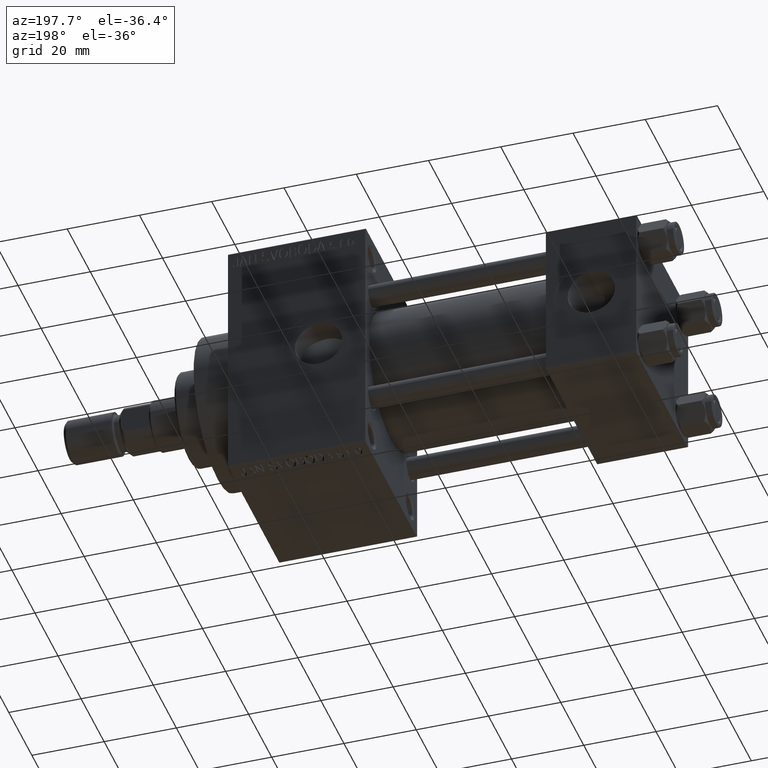
[diagram: clean part render]
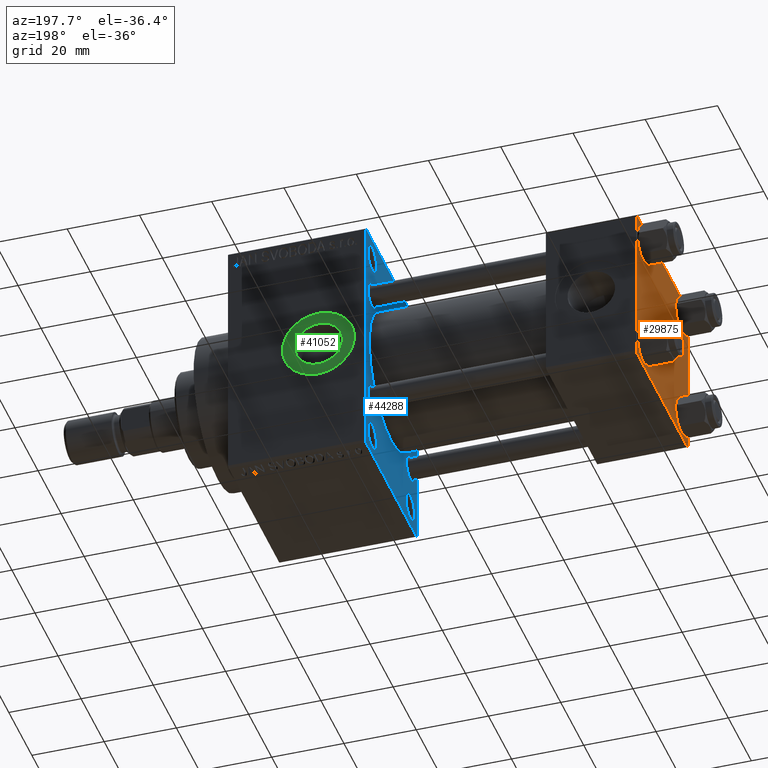
[diagram: same view with three faces highlighted in distinct colors, each labeled with its STEP entity id]
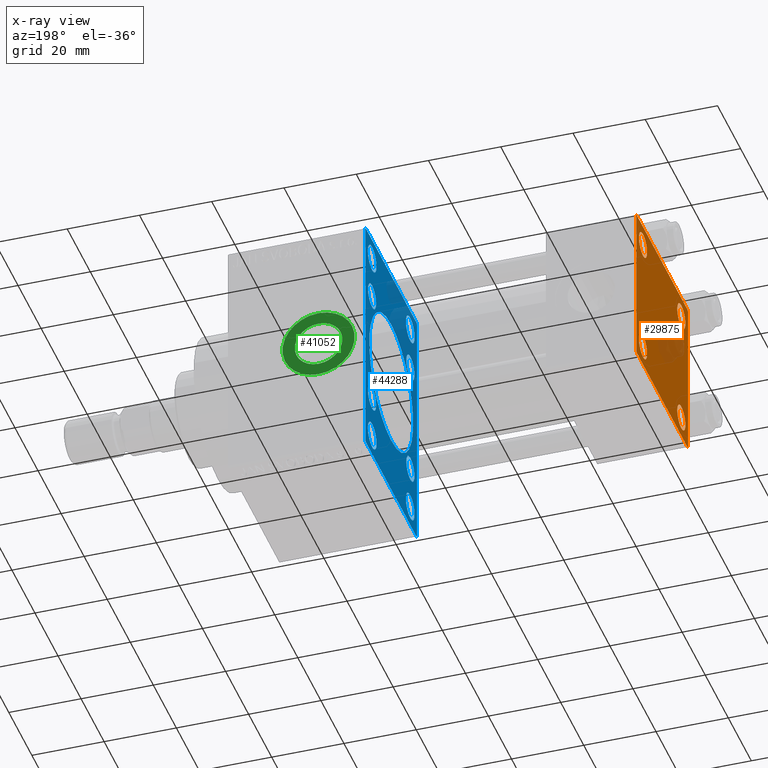
[diagram: x-ray of the same camera — body ghosted, the three highlighted faces saturated]
A machine part, auxiliary view with three faces highlighted in distinct colors.
The next image is the same camera in x-ray (body ghosted, the three faces saturated) — at least one of them is partly hidden behind the body in this view.
Their STEP definitions:

[orange] entity #29875 — the highlighted planar face has unit normal (-1, 0, 0).
#225 = EDGE_CURVE ( 'NONE', #825, #4265, #37685, .T. ) ;
#332 = CARTESIAN_POINT ( 'NONE',  ( 0.000000000000000000, 16.59999999999999787, 20.10000000000000142 ) ) ;
#382 = CARTESIAN_POINT ( 'NONE',  ( 0.000000000000000000, -16.59999999999999076, -20.10000000000000497 ) ) ;
#463 = LINE ( 'NONE', #8149, #9715 ) ;
#741 = AXIS2_PLACEMENT_3D ( 'NONE', #32288, #46961, #2674 ) ;
#805 = AXIS2_PLACEMENT_3D ( 'NONE', #1947, #45299, #16646 ) ;
#825 = VERTEX_POINT ( 'NONE', #4850 ) ;
#1101 = CARTESIAN_POINT ( 'NONE',  ( 0.000000000000000000, -22.50000000000000000, -21.99999999999997158 ) ) ;
#1104 = LINE ( 'NONE', #15803, #41071 ) ;
#1400 = VERTEX_POINT ( 'NONE', #35966 ) ;
#1917 = CIRCLE ( 'NONE', #32682, 3.499999999999996003 ) ;
#1947 = CARTESIAN_POINT ( 'NONE',  ( 0.000000000000000000, -16.59999999999999076, -16.60000000000000853 ) ) ;
#2069 = ORIENTED_EDGE ( 'NONE', *, *, #46280, .T. ) ;
#2674 = DIRECTION ( 'NONE',  ( 0.000000000000000000, 0.000000000000000000, 1.000000000000000000 ) ) ;
#2797 = EDGE_CURVE ( 'NONE', #25681, #11551, #22301, .T. ) ;
#2951 = CARTESIAN_POINT ( 'NONE',  ( 0.000000000000000000, 21.99999999999999289, 22.50000000000000355 ) ) ;
#3307 = VERTEX_POINT ( 'NONE', #12575 ) ;
#3429 = ORIENTED_EDGE ( 'NONE', *, *, #7224, .T. ) ;
#3834 = DIRECTION ( 'NONE',  ( 1.000000000000000000, -0.000000000000000000, 0.000000000000000000 ) ) ;
#4047 = LINE ( 'NONE', #4284, #27023 ) ;
#4104 = FACE_BOUND ( 'NONE', #44765, .T. ) ;
#4265 = VERTEX_POINT ( 'NONE', #1101 ) ;
#4284 = CARTESIAN_POINT ( 'NONE',  ( 0.000000000000000000, -22.25000000000014566, -22.24999999999984013 ) ) ;
#4610 = ORIENTED_EDGE ( 'NONE', *, *, #225, .F. ) ;
#4668 = CIRCLE ( 'NONE', #22355, 3.499999999999996003 ) ;
#4672 = DIRECTION ( 'NONE',  ( 0.000000000000000000, 0.000000000000000000, -1.000000000000000000 ) ) ;
#4850 = CARTESIAN_POINT ( 'NONE',  ( 0.000000000000000000, -22.50000000000000000, 22.00000000000000000 ) ) ;
#4893 = EDGE_CURVE ( 'NONE', #22153, #15526, #21363, .T. ) ;
#5141 = CARTESIAN_POINT ( 'NONE',  ( 0.000000000000000000, -22.50000000000000000, 22.50000000000000000 ) ) ;
#5320 = EDGE_LOOP ( 'NONE', ( #39931, #18912 ) ) ;
#5796 = ORIENTED_EDGE ( 'NONE', *, *, #28236, .T. ) ;
#6306 = CIRCLE ( 'NONE', #14777, 3.499999999999996003 ) ;
#6457 = DIRECTION ( 'NONE',  ( 1.000000000000000000, -0.000000000000000000, 0.000000000000000000 ) ) ;
#6470 = CARTESIAN_POINT ( 'NONE',  ( 0.000000000000000000, 16.59999999999999787, -13.10000000000000675 ) ) ;
#6612 = DIRECTION ( 'NONE',  ( 1.000000000000000000, -0.000000000000000000, 0.000000000000000000 ) ) ;
#6918 = AXIS2_PLACEMENT_3D ( 'NONE', #24778, #6457, #9619 ) ;
#6998 = DIRECTION ( 'NONE',  ( -0.000000000000000000, 0.000000000000000000, 1.000000000000000000 ) ) ;
#7215 = EDGE_CURVE ( 'NONE', #25416, #3307, #12204, .T. ) ;
#7224 = EDGE_CURVE ( 'NONE', #27956, #43630, #1917, .T. ) ;
#7230 = DIRECTION ( 'NONE',  ( -1.000000000000000000, 0.000000000000000000, -0.000000000000000000 ) ) ;
#8149 = CARTESIAN_POINT ( 'NONE',  ( 0.000000000000000000, 22.50000000000000000, -22.49999999999999645 ) ) ;
#8593 = DIRECTION ( 'NONE',  ( 0.000000000000000000, 0.7071067811865474617, -0.7071067811865474617 ) ) ;
#9619 = DIRECTION ( 'NONE',  ( 0.000000000000000000, 0.000000000000000000, 1.000000000000000000 ) ) ;
#9715 = VECTOR ( 'NONE', #37549, 1000.000000000000000 ) ;
#9738 = CARTESIAN_POINT ( 'NONE',  ( 0.000000000000000000, -16.59999999999999076, 13.10000000000001030 ) ) ;
#9858 = ORIENTED_EDGE ( 'NONE', *, *, #2797, .T. ) ;
#11551 = VERTEX_POINT ( 'NONE', #9738 ) ;
#12171 = DIRECTION ( 'NONE',  ( 0.000000000000000000, 0.000000000000000000, -1.000000000000000000 ) ) ;
#12204 = LINE ( 'NONE', #26186, #16546 ) ;
#12575 = CARTESIAN_POINT ( 'NONE',  ( 0.000000000000000000, 22.50000000000000000, 21.99999999999999645 ) ) ;
#13548 = VERTEX_POINT ( 'NONE', #42060 ) ;
#14187 = ORIENTED_EDGE ( 'NONE', *, *, #46662, .T. ) ;
#14425 = ORIENTED_EDGE ( 'NONE', *, *, #36286, .T. ) ;
#14426 = EDGE_CURVE ( 'NONE', #15526, #40166, #463, .T. ) ;
#14714 = FACE_OUTER_BOUND ( 'NONE', #18607, .T. ) ;
#14777 = AXIS2_PLACEMENT_3D ( 'NONE', #22147, #3834, #32503 ) ;
#14989 = ORIENTED_EDGE ( 'NONE', *, *, #7215, .T. ) ;
#15526 = VERTEX_POINT ( 'NONE', #25046 ) ;
#15803 = CARTESIAN_POINT ( 'NONE',  ( 0.000000000000000000, 22.50000000000000000, 22.50000000000000355 ) ) ;
#16528 = LINE ( 'NONE', #35065, #38664 ) ;
#16546 = VECTOR ( 'NONE', #8593, 1000.000000000000114 ) ;
#16646 = DIRECTION ( 'NONE',  ( 0.000000000000000000, 0.000000000000000000, 1.000000000000000000 ) ) ;
#17294 = CIRCLE ( 'NONE', #44194, 3.499999999999996003 ) ;
#17659 = CARTESIAN_POINT ( 'NONE',  ( 0.000000000000000000, 16.59999999999999787, 16.60000000000000497 ) ) ;
#17855 = PLANE ( 'NONE',  #26273 ) ;
#18028 = LINE ( 'NONE', #32723, #32544 ) ;
#18319 = CARTESIAN_POINT ( 'NONE',  ( 0.000000000000000000, 0.000000000000000000, 0.000000000000000000 ) ) ;
#18607 = EDGE_LOOP ( 'NONE', ( #39721, #43475, #45235, #39268, #4610, #35518, #38620, #14989 ) ) ;
#18740 = DIRECTION ( 'NONE',  ( 0.000000000000000000, -0.7071067811865426878, 0.7071067811865524577 ) ) ;
#18802 = FACE_BOUND ( 'NONE', #19959, .T. ) ;
#18912 = ORIENTED_EDGE ( 'NONE', *, *, #21347, .T. ) ;
#19203 = DIRECTION ( 'NONE',  ( 1.000000000000000000, -0.000000000000000000, 0.000000000000000000 ) ) ;
#19959 = EDGE_LOOP ( 'NONE', ( #2069, #14187 ) ) ;
#20606 = DIRECTION ( 'NONE',  ( -0.000000000000000000, 0.7071067811865525687, 0.7071067811865425767 ) ) ;
#21140 = AXIS2_PLACEMENT_3D ( 'NONE', #17659, #39586, #35500 ) ;
#21347 = EDGE_CURVE ( 'NONE', #13548, #31448, #21509, .T. ) ;
#21363 = LINE ( 'NONE', #32435, #31936 ) ;
#21509 = CIRCLE ( 'NONE', #741, 3.499999999999996003 ) ;
#21557 = DIRECTION ( 'NONE',  ( 0.000000000000000000, 0.000000000000000000, 1.000000000000000000 ) ) ;
#21888 = DIRECTION ( 'NONE',  ( 0.000000000000000000, -1.000000000000000000, -7.709882115452476934E-17 ) ) ;
#22147 = CARTESIAN_POINT ( 'NONE',  ( 0.000000000000000000, 16.59999999999999787, -16.60000000000000497 ) ) ;
#22153 = VERTEX_POINT ( 'NONE', #34499 ) ;
#22179 = FACE_BOUND ( 'NONE', #22992, .T. ) ;
#22301 = CIRCLE ( 'NONE', #6918, 3.499999999999996003 ) ;
#22355 = AXIS2_PLACEMENT_3D ( 'NONE', #47293, #6612, #21557 ) ;
#22992 = EDGE_LOOP ( 'NONE', ( #9858, #14425 ) ) ;
#23064 = CARTESIAN_POINT ( 'NONE',  ( 0.000000000000000000, 16.59999999999999787, 16.60000000000000497 ) ) ;
#23130 = CIRCLE ( 'NONE', #805, 3.499999999999996003 ) ;
#24778 = CARTESIAN_POINT ( 'NONE',  ( 0.000000000000000000, -16.59999999999999076, 16.60000000000000853 ) ) ;
#25046 = CARTESIAN_POINT ( 'NONE',  ( 0.000000000000000000, 21.99999999999999289, -22.49999999999999645 ) ) ;
#25304 = FACE_BOUND ( 'NONE', #5320, .T. ) ;
#25416 = VERTEX_POINT ( 'NONE', #2951 ) ;
#25681 = VERTEX_POINT ( 'NONE', #43251 ) ;
#26186 = CARTESIAN_POINT ( 'NONE',  ( 0.000000000000000000, 22.24999999999999645, 22.24999999999999645 ) ) ;
#26273 = AXIS2_PLACEMENT_3D ( 'NONE', #18319, #7230, #6998 ) ;
#26899 = DIRECTION ( 'NONE',  ( 0.000000000000000000, 0.000000000000000000, 1.000000000000000000 ) ) ;
#27023 = VECTOR ( 'NONE', #18740, 1000.000000000000000 ) ;
#27847 = VERTEX_POINT ( 'NONE', #332 ) ;
#27956 = VERTEX_POINT ( 'NONE', #34763 ) ;
#28236 = EDGE_CURVE ( 'NONE', #43630, #27956, #23130, .T. ) ;
#29875 = ADVANCED_FACE ( 'NONE', ( #22179, #4104, #25304, #18802, #14714 ), #17855, .T. ) ;
#31448 = VERTEX_POINT ( 'NONE', #6470 ) ;
#31936 = VECTOR ( 'NONE', #43031, 1000.000000000000000 ) ;
#32288 = CARTESIAN_POINT ( 'NONE',  ( 0.000000000000000000, 16.59999999999999787, -16.60000000000000497 ) ) ;
#32435 = CARTESIAN_POINT ( 'NONE',  ( 0.000000000000000000, 22.25000000000014566, -22.24999999999984013 ) ) ;
#32503 = DIRECTION ( 'NONE',  ( 0.000000000000000000, 0.000000000000000000, 1.000000000000000000 ) ) ;
#32544 = VECTOR ( 'NONE', #21888, 1000.000000000000000 ) ;
#32682 = AXIS2_PLACEMENT_3D ( 'NONE', #44971, #19203, #26899 ) ;
#32723 = CARTESIAN_POINT ( 'NONE',  ( 0.000000000000000000, 22.50000000000000000, 22.50000000000000355 ) ) ;
#32817 = EDGE_CURVE ( 'NONE', #825, #44840, #16528, .T. ) ;
#33225 = CARTESIAN_POINT ( 'NONE',  ( 0.000000000000000000, -21.99999999999997158, -22.50000000000000711 ) ) ;
#33449 = CIRCLE ( 'NONE', #21140, 3.499999999999996003 ) ;
#34499 = CARTESIAN_POINT ( 'NONE',  ( 0.000000000000000000, 22.50000000000000000, -21.99999999999996803 ) ) ;
#34763 = CARTESIAN_POINT ( 'NONE',  ( 0.000000000000000000, -16.59999999999999076, -13.10000000000001030 ) ) ;
#35065 = CARTESIAN_POINT ( 'NONE',  ( -0.000000000000000000, -22.24999999999984013, 22.25000000000015277 ) ) ;
#35500 = DIRECTION ( 'NONE',  ( 0.000000000000000000, 0.000000000000000000, 1.000000000000000000 ) ) ;
#35518 = ORIENTED_EDGE ( 'NONE', *, *, #32817, .T. ) ;
#35966 = CARTESIAN_POINT ( 'NONE',  ( 0.000000000000000000, 16.59999999999999787, 13.10000000000000675 ) ) ;
#36286 = EDGE_CURVE ( 'NONE', #11551, #25681, #4668, .T. ) ;
#37549 = DIRECTION ( 'NONE',  ( 0.000000000000000000, -1.000000000000000000, -2.312964634635742957E-16 ) ) ;
#37685 = LINE ( 'NONE', #5141, #42316 ) ;
#38100 = EDGE_CURVE ( 'NONE', #40166, #4265, #4047, .T. ) ;
#38620 = ORIENTED_EDGE ( 'NONE', *, *, #43280, .F. ) ;
#38664 = VECTOR ( 'NONE', #20606, 999.9999999999998863 ) ;
#39268 = ORIENTED_EDGE ( 'NONE', *, *, #38100, .T. ) ;
#39586 = DIRECTION ( 'NONE',  ( 1.000000000000000000, -0.000000000000000000, 0.000000000000000000 ) ) ;
#39721 = ORIENTED_EDGE ( 'NONE', *, *, #44600, .T. ) ;
#39931 = ORIENTED_EDGE ( 'NONE', *, *, #40161, .T. ) ;
#40161 = EDGE_CURVE ( 'NONE', #31448, #13548, #6306, .T. ) ;
#40166 = VERTEX_POINT ( 'NONE', #33225 ) ;
#40878 = DIRECTION ( 'NONE',  ( 0.000000000000000000, 0.000000000000000000, 1.000000000000000000 ) ) ;
#41071 = VECTOR ( 'NONE', #12171, 1000.000000000000000 ) ;
#42060 = CARTESIAN_POINT ( 'NONE',  ( 0.000000000000000000, 16.59999999999999787, -20.10000000000000142 ) ) ;
#42195 = CARTESIAN_POINT ( 'NONE',  ( 0.000000000000000000, -21.99999999999997868, 22.50000000000000000 ) ) ;
#42316 = VECTOR ( 'NONE', #4672, 1000.000000000000000 ) ;
#43031 = DIRECTION ( 'NONE',  ( -0.000000000000000000, -0.7071067811865426878, -0.7071067811865524577 ) ) ;
#43251 = CARTESIAN_POINT ( 'NONE',  ( 0.000000000000000000, -16.59999999999999076, 20.10000000000000853 ) ) ;
#43280 = EDGE_CURVE ( 'NONE', #25416, #44840, #18028, .T. ) ;
#43475 = ORIENTED_EDGE ( 'NONE', *, *, #4893, .T. ) ;
#43630 = VERTEX_POINT ( 'NONE', #382 ) ;
#44194 = AXIS2_PLACEMENT_3D ( 'NONE', #23064, #44974, #40878 ) ;
#44600 = EDGE_CURVE ( 'NONE', #3307, #22153, #1104, .T. ) ;
#44765 = EDGE_LOOP ( 'NONE', ( #3429, #5796 ) ) ;
#44840 = VERTEX_POINT ( 'NONE', #42195 ) ;
#44971 = CARTESIAN_POINT ( 'NONE',  ( 0.000000000000000000, -16.59999999999999076, -16.60000000000000853 ) ) ;
#44974 = DIRECTION ( 'NONE',  ( 1.000000000000000000, -0.000000000000000000, 0.000000000000000000 ) ) ;
#45235 = ORIENTED_EDGE ( 'NONE', *, *, #14426, .T. ) ;
#45299 = DIRECTION ( 'NONE',  ( 1.000000000000000000, -0.000000000000000000, 0.000000000000000000 ) ) ;
#46280 = EDGE_CURVE ( 'NONE', #27847, #1400, #17294, .T. ) ;
#46662 = EDGE_CURVE ( 'NONE', #1400, #27847, #33449, .T. ) ;
#46961 = DIRECTION ( 'NONE',  ( 1.000000000000000000, -0.000000000000000000, 0.000000000000000000 ) ) ;
#47293 = CARTESIAN_POINT ( 'NONE',  ( 0.000000000000000000, -16.59999999999999076, 16.60000000000000853 ) ) ;

[blue] entity #44288 — the highlighted planar face has unit normal (-1, 0, 0).
#57 = LINE ( 'NONE', #15224, #9228 ) ;
#168 = DIRECTION ( 'NONE',  ( 1.000000000000000000, 0.000000000000000000, 0.000000000000000000 ) ) ;
#253 = DIRECTION ( 'NONE',  ( 0.000000000000000000, 0.000000000000000000, 1.000000000000000000 ) ) ;
#372 = AXIS2_PLACEMENT_3D ( 'NONE', #36686, #7992, #40285 ) ;
#500 = EDGE_CURVE ( 'NONE', #36899, #15201, #40787, .T. ) ;
#568 = CIRCLE ( 'NONE', #27452, 3.500000000000006661 ) ;
#917 = DIRECTION ( 'NONE',  ( 0.000000000000000000, 0.000000000000000000, 1.000000000000000000 ) ) ;
#998 = DIRECTION ( 'NONE',  ( 1.000000000000000000, 0.000000000000000000, 0.000000000000000000 ) ) ;
#1037 = DIRECTION ( 'NONE',  ( -0.000000000000000000, -0.7071067811865474617, -0.7071067811865474617 ) ) ;
#1636 = FACE_OUTER_BOUND ( 'NONE', #37725, .T. ) ;
#1686 = VECTOR ( 'NONE', #33500, 1000.000000000000000 ) ;
#1852 = AXIS2_PLACEMENT_3D ( 'NONE', #23793, #20181, #9569 ) ;
#2084 = VERTEX_POINT ( 'NONE', #40407 ) ;
#2245 = DIRECTION ( 'NONE',  ( 1.000000000000000000, 0.000000000000000000, 0.000000000000000000 ) ) ;
#2251 = AXIS2_PLACEMENT_3D ( 'NONE', #11371, #41476, #18849 ) ;
#2444 = ORIENTED_EDGE ( 'NONE', *, *, #21159, .T. ) ;
#2712 = LINE ( 'NONE', #2935, #22365 ) ;
#2721 = CARTESIAN_POINT ( 'NONE',  ( 75.00000000000001421, -2.602085213965210642E-15, 19.00000000000000000 ) ) ;
#2935 = CARTESIAN_POINT ( 'NONE',  ( 75.00000000000001421, 22.49999999999999645, -35.00000000000000000 ) ) ;
#3001 = VERTEX_POINT ( 'NONE', #46675 ) ;
#3098 = CARTESIAN_POINT ( 'NONE',  ( 75.00000000000001421, 16.50000000000000000, -25.25000000000005684 ) ) ;
#3308 = DIRECTION ( 'NONE',  ( 0.000000000000000000, 0.000000000000000000, 1.000000000000000000 ) ) ;
#3767 = CARTESIAN_POINT ( 'NONE',  ( 75.00000000000001421, 21.99999999999999645, 35.00000000000000000 ) ) ;
#3802 = DIRECTION ( 'NONE',  ( 0.000000000000000000, 0.000000000000000000, 1.000000000000000000 ) ) ;
#4013 = VERTEX_POINT ( 'NONE', #38489 ) ;
#4085 = AXIS2_PLACEMENT_3D ( 'NONE', #44739, #33912, #917 ) ;
#4408 = CARTESIAN_POINT ( 'NONE',  ( 75.00000000000001421, 16.59999999999999787, -20.10000000000000853 ) ) ;
#4512 = CARTESIAN_POINT ( 'NONE',  ( 75.00000000000001421, 16.50000000000000000, 29.00000000000000355 ) ) ;
#4814 = LINE ( 'NONE', #30131, #1686 ) ;
#5253 = VERTEX_POINT ( 'NONE', #20315 ) ;
#5472 = FACE_BOUND ( 'NONE', #42345, .T. ) ;
#5498 = DIRECTION ( 'NONE',  ( 1.000000000000000000, 0.000000000000000000, 0.000000000000000000 ) ) ;
#5586 = LINE ( 'NONE', #34508, #31962 ) ;
#5658 = LINE ( 'NONE', #12178, #11547 ) ;
#5969 = EDGE_CURVE ( 'NONE', #26327, #36234, #12600, .T. ) ;
#5975 = CARTESIAN_POINT ( 'NONE',  ( 75.00000000000001421, -16.50000000000000000, -28.99999999999999289 ) ) ;
#6741 = CIRCLE ( 'NONE', #42138, 3.749999999999937383 ) ;
#6843 = VERTEX_POINT ( 'NONE', #25523 ) ;
#6904 = ORIENTED_EDGE ( 'NONE', *, *, #35373, .T. ) ;
#6967 = CARTESIAN_POINT ( 'NONE',  ( 75.00000000000001421, 22.49999999999999645, 34.50000000000000000 ) ) ;
#6989 = ORIENTED_EDGE ( 'NONE', *, *, #42554, .T. ) ;
#7072 = AXIS2_PLACEMENT_3D ( 'NONE', #41450, #998, #45535 ) ;
#7202 = ORIENTED_EDGE ( 'NONE', *, *, #35599, .T. ) ;
#7732 = EDGE_CURVE ( 'NONE', #2084, #5253, #8058, .T. ) ;
#7992 = DIRECTION ( 'NONE',  ( 1.000000000000000000, 0.000000000000000000, 0.000000000000000000 ) ) ;
#8058 = CIRCLE ( 'NONE', #18863, 3.749999999999937383 ) ;
#8397 = ORIENTED_EDGE ( 'NONE', *, *, #15955, .T. ) ;
#8496 = DIRECTION ( 'NONE',  ( 0.000000000000000000, 0.000000000000000000, 1.000000000000000000 ) ) ;
#8771 = EDGE_CURVE ( 'NONE', #36972, #4013, #5586, .T. ) ;
#8902 = CARTESIAN_POINT ( 'NONE',  ( 75.00000000000001421, 22.49999999999999645, -34.50000000000000000 ) ) ;
#8949 = EDGE_LOOP ( 'NONE', ( #36700, #22268 ) ) ;
#9000 = CARTESIAN_POINT ( 'NONE',  ( 75.00000000000001421, 16.59999999999999787, -16.60000000000000497 ) ) ;
#9017 = EDGE_LOOP ( 'NONE', ( #40778, #7202 ) ) ;
#9228 = VECTOR ( 'NONE', #29920, 1000.000000000000000 ) ;
#9285 = DIRECTION ( 'NONE',  ( 0.000000000000000000, -0.7071067811865376918, 0.7071067811865574537 ) ) ;
#9335 = DIRECTION ( 'NONE',  ( -1.000000000000000000, 0.000000000000000000, -0.000000000000000000 ) ) ;
#9569 = DIRECTION ( 'NONE',  ( 0.000000000000000000, 0.000000000000000000, 1.000000000000000000 ) ) ;
#9589 = CIRCLE ( 'NONE', #372, 3.500000000000006661 ) ;
#9597 = CARTESIAN_POINT ( 'NONE',  ( 75.00000000000001421, 16.50000000000000000, -28.99999999999999289 ) ) ;
#9629 = DIRECTION ( 'NONE',  ( 0.000000000000000000, 0.000000000000000000, -1.000000000000000000 ) ) ;
#9646 = VERTEX_POINT ( 'NONE', #24153 ) ;
#10522 = CARTESIAN_POINT ( 'NONE',  ( 75.00000000000001421, 16.50000000000000000, -28.99999999999999289 ) ) ;
#10706 = EDGE_LOOP ( 'NONE', ( #44782, #47568 ) ) ;
#11371 = CARTESIAN_POINT ( 'NONE',  ( 75.00000000000001421, 16.59999999999999787, 16.60000000000000497 ) ) ;
#11547 = VECTOR ( 'NONE', #9285, 999.9999999999998863 ) ;
#11737 = DIRECTION ( 'NONE',  ( 0.000000000000000000, 0.7071067811865474617, -0.7071067811865474617 ) ) ;
#11798 = DIRECTION ( 'NONE',  ( 1.000000000000000000, 0.000000000000000000, 0.000000000000000000 ) ) ;
#11871 = EDGE_CURVE ( 'NONE', #32508, #33168, #47446, .T. ) ;
#12178 = CARTESIAN_POINT ( 'NONE',  ( 75.00000000000001421, -28.50000000000030198, -28.49999999999951328 ) ) ;
#12451 = AXIS2_PLACEMENT_3D ( 'NONE', #20242, #42625, #9629 ) ;
#12600 = CIRCLE ( 'NONE', #45677, 3.749999999999937383 ) ;
#12843 = CARTESIAN_POINT ( 'NONE',  ( 75.00000000000001421, -16.50000000000000000, 25.25000000000007816 ) ) ;
#13150 = CIRCLE ( 'NONE', #43145, 3.749999999999933831 ) ;
#13185 = CARTESIAN_POINT ( 'NONE',  ( 75.00000000000001421, 0.000000000000000000, 0.000000000000000000 ) ) ;
#13397 = EDGE_CURVE ( 'NONE', #14705, #43394, #43503, .T. ) ;
#13529 = AXIS2_PLACEMENT_3D ( 'NONE', #43995, #168, #3308 ) ;
#13658 = DIRECTION ( 'NONE',  ( 1.000000000000000000, 0.000000000000000000, 0.000000000000000000 ) ) ;
#14029 = DIRECTION ( 'NONE',  ( 0.000000000000000000, -1.000000000000000000, 0.000000000000000000 ) ) ;
#14486 = CARTESIAN_POINT ( 'NONE',  ( 75.00000000000001421, 22.49999999999999645, 35.00000000000000000 ) ) ;
#14600 = EDGE_CURVE ( 'NONE', #21559, #33168, #24977, .T. ) ;
#14705 = VERTEX_POINT ( 'NONE', #26639 ) ;
#14909 = CARTESIAN_POINT ( 'NONE',  ( 75.00000000000001421, -2.752562955852396712E-16, -19.00000000000000000 ) ) ;
#15049 = EDGE_LOOP ( 'NONE', ( #21273, #15272 ) ) ;
#15201 = VERTEX_POINT ( 'NONE', #12843 ) ;
#15224 = CARTESIAN_POINT ( 'NONE',  ( 75.00000000000001421, -22.50000000000000355, 35.00000000000000000 ) ) ;
#15272 = ORIENTED_EDGE ( 'NONE', *, *, #17436, .T. ) ;
#15289 = VERTEX_POINT ( 'NONE', #30397 ) ;
#15405 = ORIENTED_EDGE ( 'NONE', *, *, #43076, .T. ) ;
#15604 = DIRECTION ( 'NONE',  ( 1.000000000000000000, 0.000000000000000000, 0.000000000000000000 ) ) ;
#15955 = EDGE_CURVE ( 'NONE', #3001, #27068, #568, .T. ) ;
#15982 = CARTESIAN_POINT ( 'NONE',  ( 75.00000000000001421, -16.50000000000000000, -28.99999999999999289 ) ) ;
#16072 = CARTESIAN_POINT ( 'NONE',  ( 75.00000000000001421, 28.49999999999999645, 28.49999999999999645 ) ) ;
#16089 = FACE_BOUND ( 'NONE', #39741, .T. ) ;
#16442 = CIRCLE ( 'NONE', #39500, 3.749999999999930278 ) ;
#16595 = DIRECTION ( 'NONE',  ( 0.000000000000000000, 0.000000000000000000, 1.000000000000000000 ) ) ;
#16665 = EDGE_CURVE ( 'NONE', #45910, #9646, #45156, .T. ) ;
#17040 = FACE_BOUND ( 'NONE', #37385, .T. ) ;
#17177 = VERTEX_POINT ( 'NONE', #14909 ) ;
#17244 = DIRECTION ( 'NONE',  ( 1.000000000000000000, 0.000000000000000000, 0.000000000000000000 ) ) ;
#17289 = EDGE_LOOP ( 'NONE', ( #29013, #36446 ) ) ;
#17436 = EDGE_CURVE ( 'NONE', #36234, #26327, #6741, .T. ) ;
#18295 = ORIENTED_EDGE ( 'NONE', *, *, #8771, .T. ) ;
#18849 = DIRECTION ( 'NONE',  ( 0.000000000000000000, 0.000000000000000000, 1.000000000000000000 ) ) ;
#18863 = AXIS2_PLACEMENT_3D ( 'NONE', #5975, #39933, #36800 ) ;
#19833 = DIRECTION ( 'NONE',  ( 0.000000000000000000, 0.000000000000000000, 1.000000000000000000 ) ) ;
#20067 = DIRECTION ( 'NONE',  ( 1.000000000000000000, 0.000000000000000000, 0.000000000000000000 ) ) ;
#20077 = DIRECTION ( 'NONE',  ( 1.000000000000000000, 0.000000000000000000, 0.000000000000000000 ) ) ;
#20118 = CIRCLE ( 'NONE', #43960, 19.00000000000000000 ) ;
#20170 = CIRCLE ( 'NONE', #12451, 19.00000000000000000 ) ;
#20181 = DIRECTION ( 'NONE',  ( 1.000000000000000000, 0.000000000000000000, 0.000000000000000000 ) ) ;
#20242 = CARTESIAN_POINT ( 'NONE',  ( 75.00000000000001421, -2.602085213965210642E-15, 0.000000000000000000 ) ) ;
#20282 = ORIENTED_EDGE ( 'NONE', *, *, #11871, .F. ) ;
#20288 = CIRCLE ( 'NONE', #46423, 3.500000000000003109 ) ;
#20315 = CARTESIAN_POINT ( 'NONE',  ( 75.00000000000001421, -16.50000000000000000, -32.74999999999992895 ) ) ;
#21101 = CARTESIAN_POINT ( 'NONE',  ( 75.00000000000001421, -22.50000000000000355, 34.50000000000000000 ) ) ;
#21159 = EDGE_CURVE ( 'NONE', #15289, #25474, #38425, .T. ) ;
#21273 = ORIENTED_EDGE ( 'NONE', *, *, #5969, .T. ) ;
#21559 = VERTEX_POINT ( 'NONE', #21101 ) ;
#22222 = CARTESIAN_POINT ( 'NONE',  ( 75.00000000000001421, -16.59999999999999076, 13.10000000000000142 ) ) ;
#22268 = ORIENTED_EDGE ( 'NONE', *, *, #38728, .T. ) ;
#22365 = VECTOR ( 'NONE', #14029, 1000.000000000000000 ) ;
#22405 = ORIENTED_EDGE ( 'NONE', *, *, #37220, .T. ) ;
#22833 = LINE ( 'NONE', #16072, #30063 ) ;
#23320 = CARTESIAN_POINT ( 'NONE',  ( 75.00000000000001421, 16.50000000000000000, 25.25000000000007461 ) ) ;
#23387 = CIRCLE ( 'NONE', #1852, 3.500000000000006661 ) ;
#23613 = VECTOR ( 'NONE', #39677, 1000.000000000000114 ) ;
#23793 = CARTESIAN_POINT ( 'NONE',  ( 75.00000000000001421, -16.59999999999999076, -16.60000000000000853 ) ) ;
#23998 = ORIENTED_EDGE ( 'NONE', *, *, #500, .T. ) ;
#24033 = FACE_BOUND ( 'NONE', #15049, .T. ) ;
#24153 = CARTESIAN_POINT ( 'NONE',  ( 75.00000000000001421, -16.59999999999999076, 20.10000000000001208 ) ) ;
#24607 = DIRECTION ( 'NONE',  ( 0.000000000000000000, 0.000000000000000000, -1.000000000000000000 ) ) ;
#24977 = LINE ( 'NONE', #32675, #23613 ) ;
#25474 = VERTEX_POINT ( 'NONE', #29202 ) ;
#25507 = EDGE_CURVE ( 'NONE', #21559, #6843, #57, .T. ) ;
#25523 = CARTESIAN_POINT ( 'NONE',  ( 75.00000000000001421, -22.50000000000000355, -34.49999999999997158 ) ) ;
#26003 = CARTESIAN_POINT ( 'NONE',  ( 75.00000000000001421, -16.50000000000000000, 32.74999999999993605 ) ) ;
#26327 = VERTEX_POINT ( 'NONE', #3098 ) ;
#26639 = CARTESIAN_POINT ( 'NONE',  ( 75.00000000000001421, 16.50000000000000000, 32.74999999999992895 ) ) ;
#27068 = VERTEX_POINT ( 'NONE', #4408 ) ;
#27160 = FACE_BOUND ( 'NONE', #8949, .T. ) ;
#27304 = DIRECTION ( 'NONE',  ( 0.000000000000000000, 0.000000000000000000, 1.000000000000000000 ) ) ;
#27452 = AXIS2_PLACEMENT_3D ( 'NONE', #9000, #2245, #27304 ) ;
#28126 = EDGE_CURVE ( 'NONE', #4013, #42887, #2712, .T. ) ;
#28220 = DIRECTION ( 'NONE',  ( 1.000000000000000000, 0.000000000000000000, 0.000000000000000000 ) ) ;
#28347 = DIRECTION ( 'NONE',  ( 0.000000000000000000, 0.000000000000000000, 1.000000000000000000 ) ) ;
#29013 = ORIENTED_EDGE ( 'NONE', *, *, #13397, .T. ) ;
#29017 = EDGE_CURVE ( 'NONE', #43394, #14705, #13150, .T. ) ;
#29202 = CARTESIAN_POINT ( 'NONE',  ( 75.00000000000001421, 16.59999999999999787, 20.10000000000001208 ) ) ;
#29920 = DIRECTION ( 'NONE',  ( 0.000000000000000000, 0.000000000000000000, -1.000000000000000000 ) ) ;
#30063 = VECTOR ( 'NONE', #11737, 1000.000000000000114 ) ;
#30085 = CARTESIAN_POINT ( 'NONE',  ( 75.00000000000001421, -16.59999999999999076, -13.10000000000000142 ) ) ;
#30131 = CARTESIAN_POINT ( 'NONE',  ( 75.00000000000001421, 22.49999999999999645, 35.00000000000000000 ) ) ;
#30341 = CARTESIAN_POINT ( 'NONE',  ( 75.00000000000001421, -21.99999999999998934, 35.00000000000000000 ) ) ;
#30397 = CARTESIAN_POINT ( 'NONE',  ( 75.00000000000001421, 16.59999999999999787, 13.09999999999999609 ) ) ;
#30683 = CARTESIAN_POINT ( 'NONE',  ( 75.00000000000001421, -16.59999999999999076, -20.10000000000001208 ) ) ;
#31015 = DIRECTION ( 'NONE',  ( -0.000000000000000000, 0.000000000000000000, 1.000000000000000000 ) ) ;
#31201 = ORIENTED_EDGE ( 'NONE', *, *, #44479, .T. ) ;
#31344 = EDGE_CURVE ( 'NONE', #41118, #17177, #20170, .T. ) ;
#31362 = CARTESIAN_POINT ( 'NONE',  ( 75.00000000000001421, -21.99999999999997513, -35.00000000000000000 ) ) ;
#31524 = ORIENTED_EDGE ( 'NONE', *, *, #25507, .F. ) ;
#31564 = AXIS2_PLACEMENT_3D ( 'NONE', #15982, #20077, #19833 ) ;
#31962 = VECTOR ( 'NONE', #1037, 1000.000000000000114 ) ;
#32096 = EDGE_CURVE ( 'NONE', #41042, #34905, #42473, .T. ) ;
#32508 = VERTEX_POINT ( 'NONE', #3767 ) ;
#32675 = CARTESIAN_POINT ( 'NONE',  ( 75.00000000000001421, -28.49999999999999645, 28.49999999999999645 ) ) ;
#33168 = VERTEX_POINT ( 'NONE', #30341 ) ;
#33267 = DIRECTION ( 'NONE',  ( 0.000000000000000000, -1.000000000000000000, 0.000000000000000000 ) ) ;
#33500 = DIRECTION ( 'NONE',  ( 0.000000000000000000, 0.000000000000000000, -1.000000000000000000 ) ) ;
#33912 = DIRECTION ( 'NONE',  ( 1.000000000000000000, 0.000000000000000000, 0.000000000000000000 ) ) ;
#33975 = DIRECTION ( 'NONE',  ( 1.000000000000000000, 0.000000000000000000, 0.000000000000000000 ) ) ;
#34320 = EDGE_LOOP ( 'NONE', ( #23998, #15405 ) ) ;
#34398 = FACE_BOUND ( 'NONE', #9017, .T. ) ;
#34508 = CARTESIAN_POINT ( 'NONE',  ( 75.00000000000001421, 28.49999999999999645, -28.49999999999999645 ) ) ;
#34662 = ORIENTED_EDGE ( 'NONE', *, *, #28126, .T. ) ;
#34864 = CIRCLE ( 'NONE', #4085, 3.500000000000006661 ) ;
#34905 = VERTEX_POINT ( 'NONE', #30085 ) ;
#35029 = VECTOR ( 'NONE', #33267, 1000.000000000000000 ) ;
#35334 = PLANE ( 'NONE',  #43366 ) ;
#35373 = EDGE_CURVE ( 'NONE', #42887, #6843, #5658, .T. ) ;
#35599 = EDGE_CURVE ( 'NONE', #5253, #2084, #40766, .T. ) ;
#36234 = VERTEX_POINT ( 'NONE', #45419 ) ;
#36446 = ORIENTED_EDGE ( 'NONE', *, *, #29017, .T. ) ;
#36686 = CARTESIAN_POINT ( 'NONE',  ( 75.00000000000001421, 16.59999999999999787, -16.60000000000000497 ) ) ;
#36700 = ORIENTED_EDGE ( 'NONE', *, *, #31344, .T. ) ;
#36800 = DIRECTION ( 'NONE',  ( 0.000000000000000000, 0.000000000000000000, 1.000000000000000000 ) ) ;
#36899 = VERTEX_POINT ( 'NONE', #26003 ) ;
#36972 = VERTEX_POINT ( 'NONE', #8902 ) ;
#37220 = EDGE_CURVE ( 'NONE', #32508, #40098, #22833, .T. ) ;
#37385 = EDGE_LOOP ( 'NONE', ( #31201, #42575 ) ) ;
#37586 = DIRECTION ( 'NONE',  ( 0.000000000000000000, 0.000000000000000000, 1.000000000000000000 ) ) ;
#37725 = EDGE_LOOP ( 'NONE', ( #34662, #6904, #31524, #45554, #20282, #22405, #37871, #18295 ) ) ;
#37871 = ORIENTED_EDGE ( 'NONE', *, *, #38960, .T. ) ;
#38425 = CIRCLE ( 'NONE', #2251, 3.500000000000006661 ) ;
#38489 = CARTESIAN_POINT ( 'NONE',  ( 75.00000000000001421, 21.99999999999999645, -35.00000000000000000 ) ) ;
#38491 = FACE_BOUND ( 'NONE', #10706, .T. ) ;
#38728 = EDGE_CURVE ( 'NONE', #17177, #41118, #20118, .T. ) ;
#38960 = EDGE_CURVE ( 'NONE', #40098, #36972, #4814, .T. ) ;
#38964 = FACE_BOUND ( 'NONE', #17289, .T. ) ;
#39305 = CARTESIAN_POINT ( 'NONE',  ( 75.00000000000001421, -2.602085213965210642E-15, 0.000000000000000000 ) ) ;
#39500 = AXIS2_PLACEMENT_3D ( 'NONE', #40705, #33975, #253 ) ;
#39677 = DIRECTION ( 'NONE',  ( -0.000000000000000000, 0.7071067811865474617, 0.7071067811865474617 ) ) ;
#39741 = EDGE_LOOP ( 'NONE', ( #6989, #2444 ) ) ;
#39933 = DIRECTION ( 'NONE',  ( 1.000000000000000000, 0.000000000000000000, 0.000000000000000000 ) ) ;
#40098 = VERTEX_POINT ( 'NONE', #6967 ) ;
#40285 = DIRECTION ( 'NONE',  ( 0.000000000000000000, 0.000000000000000000, 1.000000000000000000 ) ) ;
#40407 = CARTESIAN_POINT ( 'NONE',  ( 75.00000000000001421, -16.50000000000000000, -25.25000000000005684 ) ) ;
#40598 = CARTESIAN_POINT ( 'NONE',  ( 75.00000000000001421, -16.59999999999999076, 16.60000000000000853 ) ) ;
#40705 = CARTESIAN_POINT ( 'NONE',  ( 75.00000000000001421, -16.50000000000000000, 29.00000000000000711 ) ) ;
#40766 = CIRCLE ( 'NONE', #31564, 3.749999999999937383 ) ;
#40778 = ORIENTED_EDGE ( 'NONE', *, *, #7732, .T. ) ;
#40787 = CIRCLE ( 'NONE', #44535, 3.749999999999930278 ) ;
#41042 = VERTEX_POINT ( 'NONE', #30683 ) ;
#41118 = VERTEX_POINT ( 'NONE', #2721 ) ;
#41188 = CARTESIAN_POINT ( 'NONE',  ( 75.00000000000001421, -16.59999999999999076, 16.60000000000000853 ) ) ;
#41450 = CARTESIAN_POINT ( 'NONE',  ( 75.00000000000001421, -16.59999999999999076, -16.60000000000000853 ) ) ;
#41476 = DIRECTION ( 'NONE',  ( 1.000000000000000000, 0.000000000000000000, 0.000000000000000000 ) ) ;
#42138 = AXIS2_PLACEMENT_3D ( 'NONE', #10522, #13658, #28347 ) ;
#42345 = EDGE_LOOP ( 'NONE', ( #8397, #45254 ) ) ;
#42473 = CIRCLE ( 'NONE', #7072, 3.500000000000006661 ) ;
#42554 = EDGE_CURVE ( 'NONE', #25474, #15289, #34864, .T. ) ;
#42575 = ORIENTED_EDGE ( 'NONE', *, *, #32096, .T. ) ;
#42625 = DIRECTION ( 'NONE',  ( 1.000000000000000000, 0.000000000000000000, 0.000000000000000000 ) ) ;
#42887 = VERTEX_POINT ( 'NONE', #31362 ) ;
#42999 = DIRECTION ( 'NONE',  ( 0.000000000000000000, 0.000000000000000000, 1.000000000000000000 ) ) ;
#43076 = EDGE_CURVE ( 'NONE', #15201, #36899, #16442, .T. ) ;
#43145 = AXIS2_PLACEMENT_3D ( 'NONE', #4512, #15604, #3802 ) ;
#43366 = AXIS2_PLACEMENT_3D ( 'NONE', #13185, #9335, #31015 ) ;
#43394 = VERTEX_POINT ( 'NONE', #23320 ) ;
#43503 = CIRCLE ( 'NONE', #13529, 3.749999999999933831 ) ;
#43960 = AXIS2_PLACEMENT_3D ( 'NONE', #39305, #28220, #24607 ) ;
#43995 = CARTESIAN_POINT ( 'NONE',  ( 75.00000000000001421, 16.50000000000000000, 29.00000000000000355 ) ) ;
#44288 = ADVANCED_FACE ( 'NONE', ( #45928, #34398, #24033, #38964, #38491, #16089, #5472, #17040, #27160, #1636 ), #35334, .T. ) ;
#44479 = EDGE_CURVE ( 'NONE', #34905, #41042, #23387, .T. ) ;
#44535 = AXIS2_PLACEMENT_3D ( 'NONE', #46603, #17244, #42999 ) ;
#44739 = CARTESIAN_POINT ( 'NONE',  ( 75.00000000000001421, 16.59999999999999787, 16.60000000000000497 ) ) ;
#44782 = ORIENTED_EDGE ( 'NONE', *, *, #47146, .T. ) ;
#45156 = CIRCLE ( 'NONE', #47429, 3.500000000000003109 ) ;
#45254 = ORIENTED_EDGE ( 'NONE', *, *, #46757, .T. ) ;
#45419 = CARTESIAN_POINT ( 'NONE',  ( 75.00000000000001421, 16.50000000000000000, -32.74999999999992895 ) ) ;
#45535 = DIRECTION ( 'NONE',  ( 0.000000000000000000, 0.000000000000000000, 1.000000000000000000 ) ) ;
#45554 = ORIENTED_EDGE ( 'NONE', *, *, #14600, .T. ) ;
#45677 = AXIS2_PLACEMENT_3D ( 'NONE', #9597, #5498, #16595 ) ;
#45910 = VERTEX_POINT ( 'NONE', #22222 ) ;
#45928 = FACE_BOUND ( 'NONE', #34320, .T. ) ;
#46423 = AXIS2_PLACEMENT_3D ( 'NONE', #41188, #11798, #37586 ) ;
#46603 = CARTESIAN_POINT ( 'NONE',  ( 75.00000000000001421, -16.50000000000000000, 29.00000000000000711 ) ) ;
#46675 = CARTESIAN_POINT ( 'NONE',  ( 75.00000000000001421, 16.59999999999999787, -13.09999999999999787 ) ) ;
#46757 = EDGE_CURVE ( 'NONE', #27068, #3001, #9589, .T. ) ;
#47146 = EDGE_CURVE ( 'NONE', #9646, #45910, #20288, .T. ) ;
#47429 = AXIS2_PLACEMENT_3D ( 'NONE', #40598, #20067, #8496 ) ;
#47446 = LINE ( 'NONE', #14486, #35029 ) ;
#47568 = ORIENTED_EDGE ( 'NONE', *, *, #16665, .T. ) ;

[green] entity #41052 — the highlighted planar face has unit normal (0, 1, 0).
#102 = DIRECTION ( 'NONE',  ( 0.000000000000000000, 1.000000000000000000, 0.000000000000000000 ) ) ;
#1117 = DIRECTION ( 'NONE',  ( 0.000000000000000000, 0.000000000000000000, 1.000000000000000000 ) ) ;
#1621 = AXIS2_PLACEMENT_3D ( 'NONE', #13230, #10077, #21404 ) ;
#3096 = CIRCLE ( 'NONE', #19233, 9.999999999999994671 ) ;
#5113 = CARTESIAN_POINT ( 'NONE',  ( 88.00000000000001421, 22.29999999999999716, -9.999999999999994671 ) ) ;
#5458 = CIRCLE ( 'NONE', #1621, 9.999999999999994671 ) ;
#8334 = VERTEX_POINT ( 'NONE', #15548 ) ;
#10077 = DIRECTION ( 'NONE',  ( 0.000000000000000000, 1.000000000000000000, 0.000000000000000000 ) ) ;
#10177 = AXIS2_PLACEMENT_3D ( 'NONE', #34114, #44223, #1117 ) ;
#12135 = PLANE ( 'NONE',  #26323 ) ;
#12415 = EDGE_LOOP ( 'NONE', ( #43774, #30701 ) ) ;
#13230 = CARTESIAN_POINT ( 'NONE',  ( 88.00000000000001421, 22.29999999999999716, 0.000000000000000000 ) ) ;
#13767 = CARTESIAN_POINT ( 'NONE',  ( 88.00000000000001421, 22.29999999999999716, 9.999999999999994671 ) ) ;
#15548 = CARTESIAN_POINT ( 'NONE',  ( 88.00000000000001421, 22.29999999999999716, -6.580000000000002736 ) ) ;
#15591 = CIRCLE ( 'NONE', #41720, 6.580000000000002736 ) ;
#16291 = ORIENTED_EDGE ( 'NONE', *, *, #32708, .F. ) ;
#16709 = VERTEX_POINT ( 'NONE', #5113 ) ;
#16947 = FACE_OUTER_BOUND ( 'NONE', #12415, .T. ) ;
#19233 = AXIS2_PLACEMENT_3D ( 'NONE', #31556, #27706, #34466 ) ;
#20560 = CARTESIAN_POINT ( 'NONE',  ( 88.00000000000001421, 22.29999999999999716, 0.000000000000000000 ) ) ;
#21404 = DIRECTION ( 'NONE',  ( 0.000000000000000000, 0.000000000000000000, 1.000000000000000000 ) ) ;
#22266 = DIRECTION ( 'NONE',  ( 0.000000000000000000, 0.000000000000000000, 1.000000000000000000 ) ) ;
#22644 = EDGE_LOOP ( 'NONE', ( #27488, #16291 ) ) ;
#23940 = DIRECTION ( 'NONE',  ( 0.000000000000000000, 1.000000000000000000, 0.000000000000000000 ) ) ;
#26323 = AXIS2_PLACEMENT_3D ( 'NONE', #20560, #23940, #27782 ) ;
#27434 = EDGE_CURVE ( 'NONE', #44169, #16709, #3096, .T. ) ;
#27488 = ORIENTED_EDGE ( 'NONE', *, *, #32956, .F. ) ;
#27706 = DIRECTION ( 'NONE',  ( 0.000000000000000000, 1.000000000000000000, 0.000000000000000000 ) ) ;
#27782 = DIRECTION ( 'NONE',  ( 0.000000000000000000, -0.000000000000000000, 1.000000000000000000 ) ) ;
#30701 = ORIENTED_EDGE ( 'NONE', *, *, #37987, .T. ) ;
#30949 = CIRCLE ( 'NONE', #10177, 6.580000000000002736 ) ;
#30995 = VERTEX_POINT ( 'NONE', #46277 ) ;
#31160 = FACE_BOUND ( 'NONE', #22644, .T. ) ;
#31556 = CARTESIAN_POINT ( 'NONE',  ( 88.00000000000001421, 22.29999999999999716, 0.000000000000000000 ) ) ;
#32708 = EDGE_CURVE ( 'NONE', #8334, #30995, #30949, .T. ) ;
#32956 = EDGE_CURVE ( 'NONE', #30995, #8334, #15591, .T. ) ;
#34114 = CARTESIAN_POINT ( 'NONE',  ( 88.00000000000001421, 22.29999999999999716, 0.000000000000000000 ) ) ;
#34466 = DIRECTION ( 'NONE',  ( 0.000000000000000000, 0.000000000000000000, 1.000000000000000000 ) ) ;
#36955 = CARTESIAN_POINT ( 'NONE',  ( 88.00000000000001421, 22.29999999999999716, 0.000000000000000000 ) ) ;
#37987 = EDGE_CURVE ( 'NONE', #16709, #44169, #5458, .T. ) ;
#41052 = ADVANCED_FACE ( 'NONE', ( #31160, #16947 ), #12135, .T. ) ;
#41720 = AXIS2_PLACEMENT_3D ( 'NONE', #36955, #102, #22266 ) ;
#43774 = ORIENTED_EDGE ( 'NONE', *, *, #27434, .T. ) ;
#44169 = VERTEX_POINT ( 'NONE', #13767 ) ;
#44223 = DIRECTION ( 'NONE',  ( 0.000000000000000000, 1.000000000000000000, 0.000000000000000000 ) ) ;
#46277 = CARTESIAN_POINT ( 'NONE',  ( 88.00000000000001421, 22.29999999999999716, 6.580000000000002736 ) ) ;